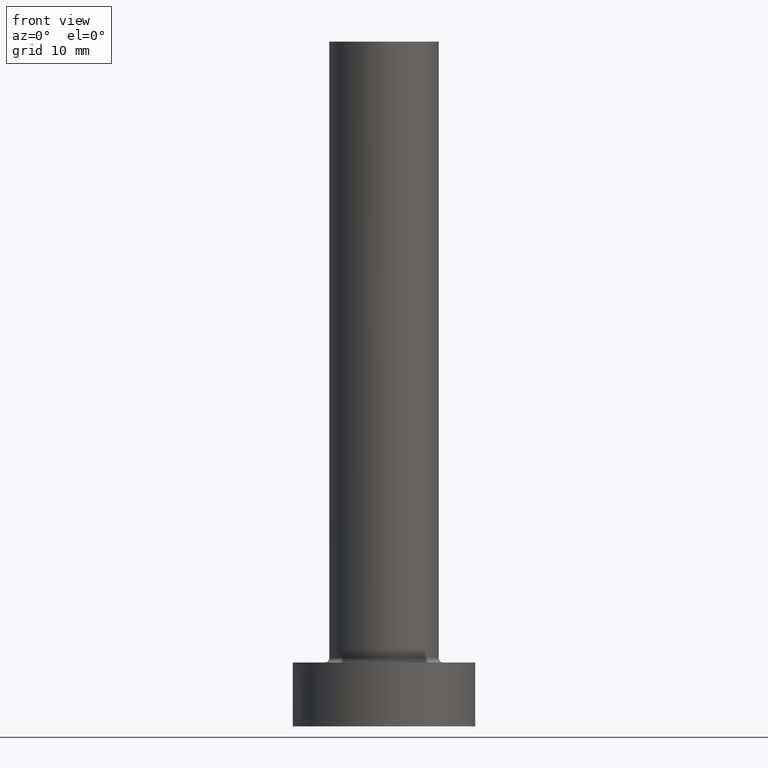
[diagram: clean part render]
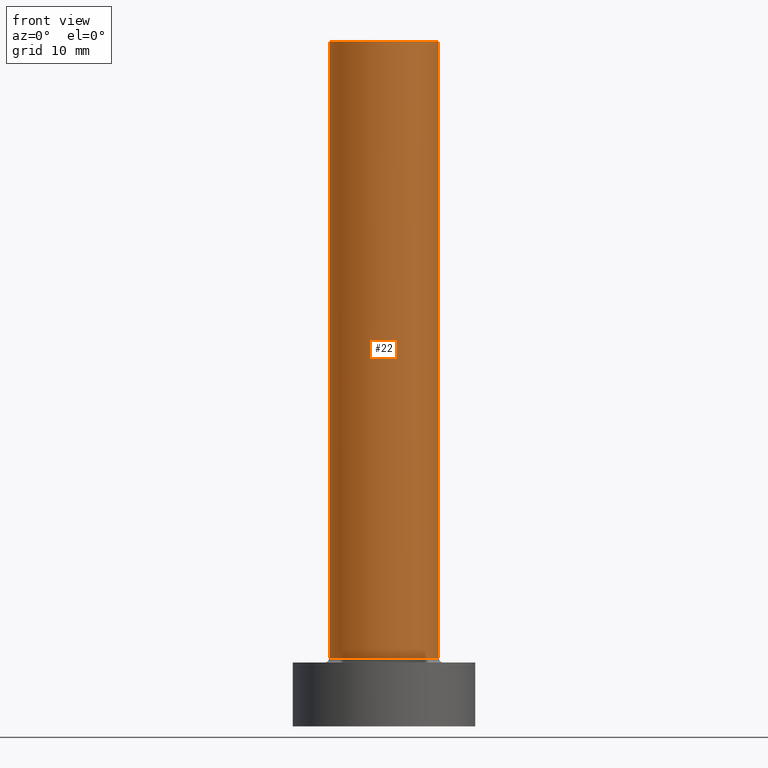
[diagram: same view with one face highlighted and labeled with its STEP entity id]
A machine part, front view. The second image highlights one B-rep face of the part: STEP entity #22.
In plain terms, the highlighted cylindrical surface (partial cylindrical patch) has radius 6 mm, axis along (-0, -0, -1).
Its self-contained STEP definition (entity closure, byte-faithful):
#9 = CARTESIAN_POINT ( 'NONE',  ( -6.000000000000000888, 0.000000000000000000, 75.00000000000001421 ) ) ;
#18 = CIRCLE ( 'NONE', #313, 6.000000000000000888 ) ;
#22 = ADVANCED_FACE ( 'NONE', ( #210 ), #346, .T. ) ;
#27 = DIRECTION ( 'NONE',  ( -0.000000000000000000, -0.000000000000000000, -1.000000000000000000 ) ) ;
#31 = VERTEX_POINT ( 'NONE', #382 ) ;
#32 = ORIENTED_EDGE ( 'NONE', *, *, #428, .F. ) ;
#47 = VECTOR ( 'NONE', #154, 1000.000000000000000 ) ;
#60 = DIRECTION ( 'NONE',  ( 1.000000000000000000, 0.000000000000000000, 0.000000000000000000 ) ) ;
#100 = ORIENTED_EDGE ( 'NONE', *, *, #181, .F. ) ;
#115 = AXIS2_PLACEMENT_3D ( 'NONE', #247, #27, #165 ) ;
#116 = CIRCLE ( 'NONE', #420, 6.000000000000000888 ) ;
#126 = DIRECTION ( 'NONE',  ( 0.000000000000000000, 0.000000000000000000, 1.000000000000000000 ) ) ;
#131 = ORIENTED_EDGE ( 'NONE', *, *, #307, .T. ) ;
#136 = VECTOR ( 'NONE', #141, 1000.000000000000000 ) ;
#138 = LINE ( 'NONE', #9, #136 ) ;
#141 = DIRECTION ( 'NONE',  ( -0.000000000000000000, -0.000000000000000000, -1.000000000000000000 ) ) ;
#143 = CARTESIAN_POINT ( 'NONE',  ( 0.000000000000000000, 0.000000000000000000, 7.500000000000007105 ) ) ;
#154 = DIRECTION ( 'NONE',  ( -0.000000000000000000, -0.000000000000000000, -1.000000000000000000 ) ) ;
#165 = DIRECTION ( 'NONE',  ( -1.000000000000000000, 0.000000000000000000, 0.000000000000000000 ) ) ;
#181 = EDGE_CURVE ( 'NONE', #31, #271, #335, .T. ) ;
#205 = VERTEX_POINT ( 'NONE', #279 ) ;
#210 = FACE_OUTER_BOUND ( 'NONE', #445, .T. ) ;
#227 = DIRECTION ( 'NONE',  ( 0.000000000000000000, 0.000000000000000000, 1.000000000000000000 ) ) ;
#233 = CARTESIAN_POINT ( 'NONE',  ( 6.000000000000000888, 7.347880794884120722E-16, 75.00000000000001421 ) ) ;
#236 = CARTESIAN_POINT ( 'NONE',  ( -6.000000000000000888, 0.000000000000000000, 7.500000000000007105 ) ) ;
#247 = CARTESIAN_POINT ( 'NONE',  ( 0.000000000000000000, 0.000000000000000000, 75.00000000000001421 ) ) ;
#264 = VERTEX_POINT ( 'NONE', #236 ) ;
#271 = VERTEX_POINT ( 'NONE', #371 ) ;
#279 = CARTESIAN_POINT ( 'NONE',  ( -6.000000000000000888, 0.000000000000000000, 75.00000000000001421 ) ) ;
#281 = CARTESIAN_POINT ( 'NONE',  ( 0.000000000000000000, 0.000000000000000000, 75.00000000000001421 ) ) ;
#307 = EDGE_CURVE ( 'NONE', #264, #271, #18, .T. ) ;
#313 = AXIS2_PLACEMENT_3D ( 'NONE', #143, #227, #436 ) ;
#335 = LINE ( 'NONE', #233, #47 ) ;
#346 = CYLINDRICAL_SURFACE ( 'NONE', #115, 6.000000000000000888 ) ;
#370 = ORIENTED_EDGE ( 'NONE', *, *, #441, .T. ) ;
#371 = CARTESIAN_POINT ( 'NONE',  ( 6.000000000000000888, 7.347880794884120722E-16, 7.500000000000007105 ) ) ;
#382 = CARTESIAN_POINT ( 'NONE',  ( 6.000000000000000888, 7.347880794884120722E-16, 75.00000000000001421 ) ) ;
#420 = AXIS2_PLACEMENT_3D ( 'NONE', #281, #126, #60 ) ;
#428 = EDGE_CURVE ( 'NONE', #205, #31, #116, .T. ) ;
#436 = DIRECTION ( 'NONE',  ( 1.000000000000000000, 0.000000000000000000, 0.000000000000000000 ) ) ;
#441 = EDGE_CURVE ( 'NONE', #205, #264, #138, .T. ) ;
#445 = EDGE_LOOP ( 'NONE', ( #100, #32, #370, #131 ) ) ;